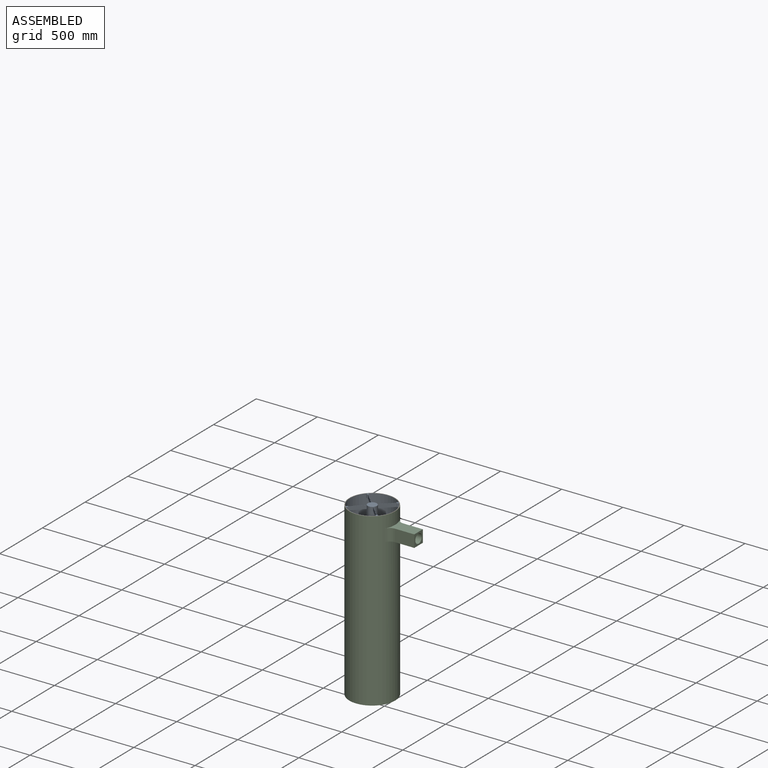
[diagram: assembled view]
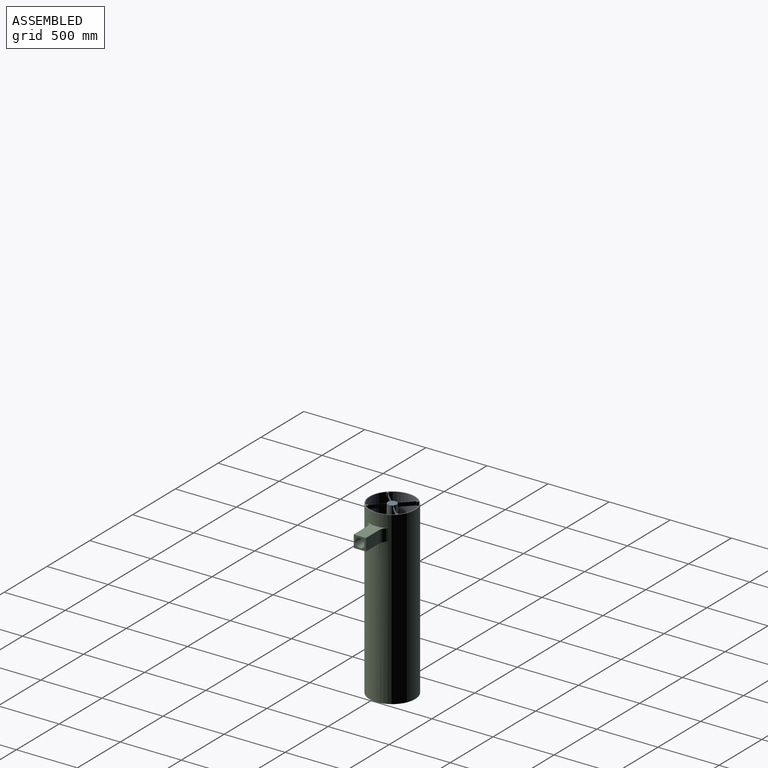
[diagram: assembled view, second angle]
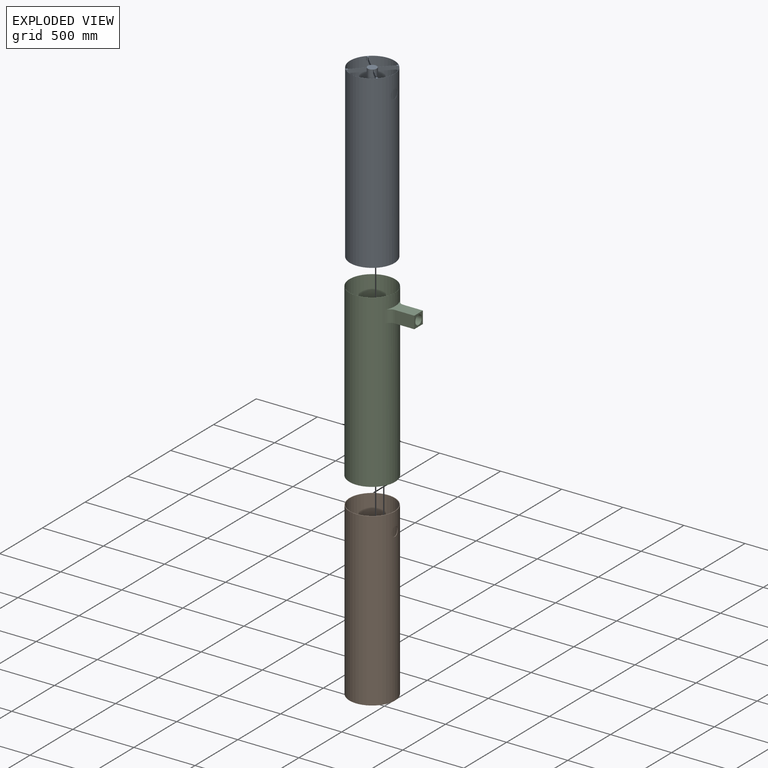
[diagram: exploded view]
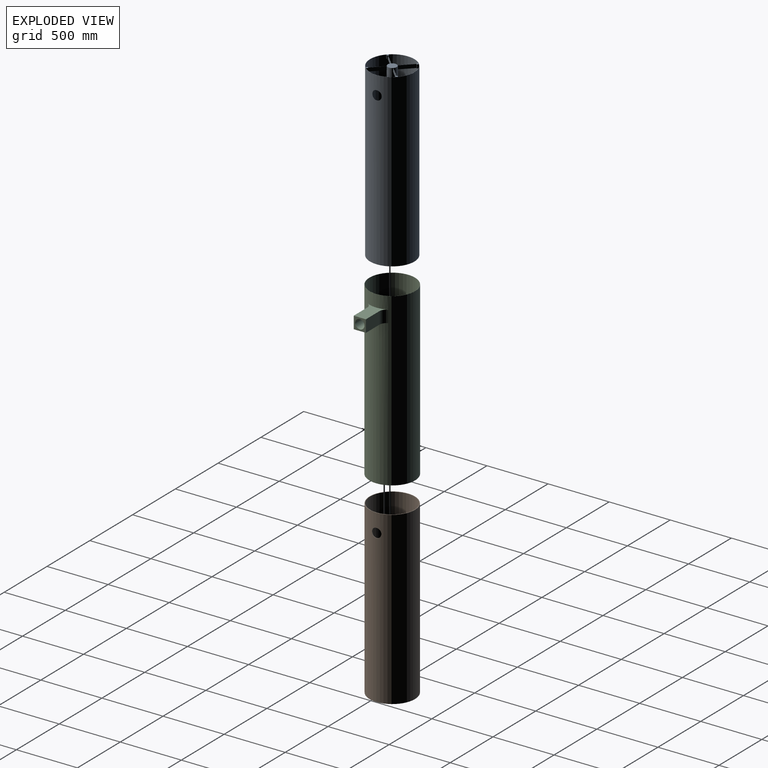
[diagram: exploded view, second angle]
ASSEMBLY  parts=3 mates=2
PART A: 35 faces, bbox 364x364x1400 mm
  f0: plane 30x11.16mm, normal (-0.71,0.71,0), area 473.5mm2, adj f2,f13,f14,f30
  f1: plane 30x11.16mm, normal (0.71,-0.71,0), area 473.5mm2, adj f2,f13,f15,f30
  f2: plane 107.36x107.36mm, normal (0,0,-1), area 382mm2, adj f0,f1,f12,f14,f15,f16,f17,f30
  f3: plane 30x11.16mm, normal (-0.71,-0.71,0), area 473.5mm2, adj f5,f13,f18,f30
  f4: plane 30x11.16mm, normal (0.71,0.71,0), area 473.5mm2, adj f5,f13,f19,f30
  f5: plane 107.36x107.36mm, normal (0,0,-1), area 382mm2, adj f3,f4,f12,f18,f19,f20,f21,f30
  f6: plane 30x11.16mm, normal (0.71,-0.71,0), area 473.5mm2, adj f8,f13,f22,f30
  f7: plane 30x11.16mm, normal (-0.71,0.71,0), area 473.5mm2, adj f8,f13,f23,f30
  f8: plane 107.36x107.36mm, normal (0,0,-1), area 382mm2, adj f6,f7,f12,f22,f23,f24,f25,f30
  f9: plane 107.36x107.36mm, normal (0,0,-1), area 382mm2, adj f10,f11,f12,f26,f27,f28,f29,f30
  f10: plane 30x11.16mm, normal (-0.71,-0.71,0), area 473.5mm2, adj f9,f13,f27,f30
  f11: plane 30x11.16mm, normal (0.71,0.71,0), area 473.5mm2, adj f9,f13,f28,f30
  f12: cylinder r=37.5mm len=179.45mm, axis (0,0,1), area 35222.8mm2, adj f2,f5,f8,f9,f13,f16,f17,f20
  f13: plane 364x364mm, normal (0,0,1), area 7086.2mm2, adj f0,f1,f3,f4,f6,f7,f10,f11
  f14: plane 30x5.3mm, normal (-0.71,-0.71,0), area 225mm2, adj f0,f2,f13,f16
  f15: plane 30x5.3mm, normal (-0.71,-0.71,0), area 225mm2, adj f1,f2,f13,f17
  f16: plane 90.19x90.19mm, normal (-0.71,0.71,0), area 3826.2mm2, adj f2,f12,f13,f14
  f17: plane 90.19x90.19mm, normal (0.71,-0.71,0), area 3826.2mm2, adj f2,f12,f13,f15
  f18: plane 30x5.3mm, normal (0.71,-0.71,0), area 225mm2, adj f3,f5,f13,f20
  f19: plane 30x5.3mm, normal (0.71,-0.71,0), area 225mm2, adj f4,f5,f13,f21
  f20: plane 90.19x90.19mm, normal (-0.71,-0.71,0), area 3826.2mm2, adj f5,f12,f13,f18
  f21: plane 90.19x90.19mm, normal (0.71,0.71,0), area 3826.2mm2, adj f5,f12,f13,f19
  f22: plane 30x5.3mm, normal (0.71,0.71,0), area 225mm2, adj f6,f8,f13,f25
  f23: plane 30x5.3mm, normal (0.71,0.71,0), area 225mm2, adj f7,f8,f13,f24
  f24: plane 90.19x90.19mm, normal (-0.71,0.71,0), area 3826.2mm2, adj f8,f12,f13,f23
  f25: plane 90.19x90.19mm, normal (0.71,-0.71,0), area 3826.2mm2, adj f8,f12,f13,f22
  f26: plane 90.19x90.19mm, normal (-0.71,-0.71,0), area 3826.2mm2, adj f9,f12,f13,f27
  f27: plane 30x5.3mm, normal (-0.71,0.71,0), area 225mm2, adj f9,f10,f13,f26
  f28: plane 30x5.3mm, normal (-0.71,0.71,0), area 225mm2, adj f9,f11,f13,f29
  f29: plane 90.19x90.19mm, normal (0.71,0.71,0), area 3826.2mm2, adj f9,f12,f13,f28
  f30: cylinder r=181mm len=1400mm, axis (0,0,1), area 1585656.9mm2, adj f0,f1,f2,f3,f4,f5,f6,f7
  f31: cylinder r=182mm len=1400mm, axis (0,0,1), area 1596374.4mm2, adj f13,f32,f33
  f32: plane 364x364mm, normal (0,0,-1), area 1140.4mm2, adj f30,f31
  f33: cylinder r=38.1mm len=76.2mm, axis (1,0,0), area 242.1mm2, adj f30,f31
  f34: plane 75x75mm, normal (0.61,0,-0.79), area 5588.3mm2, adj f12
PART B: 5 faces, bbox 372x372x1400 mm
  f0: cylinder r=186mm len=1400mm, axis (0,0,1), area 1631561.9mm2, adj f2,f3,f4
  f1: cylinder r=182mm len=1400mm, axis (0,0,1), area 1596374.4mm2, adj f2,f3,f4
  f2: plane 372x372mm, normal (0,0,-1), area 4624.4mm2, adj f0,f1
  f3: plane 372x372mm, normal (0,0,1), area 4624.4mm2, adj f0,f1
  f4: cylinder r=38.1mm len=76.2mm, axis (1,0,0), area 968.1mm2, adj f0,f1
PART C: 12 faces, bbox 566.2x374x1400 mm
  f0: plane 158x100mm, normal (0,1,0), area 15800mm2, adj f3,f5,f6,f9
  f1: cylinder r=187mm len=1400mm, axis (0,0,1), area 1627675.6mm2, adj f5,f6,f7,f8,f9,f10
  f2: plane 158x100mm, normal (0,-1,0), area 15800mm2, adj f3,f5,f6,f8
  f3: plane 100x100mm, normal (1,0,0), area 5439.6mm2, adj f0,f2,f5,f6,f11
  f4: cylinder r=186mm len=1400mm, axis (0,0,1), area 1631561.9mm2, adj f7,f10,f11
  f5: plane 211.72x166.56mm, normal (0,0,-1), area 19993.4mm2, adj f0,f1,f2,f3,f8,f9
  f6: plane 211.72x166.56mm, normal (0,0,1), area 19993.4mm2, adj f0,f1,f2,f3,f8,f9
  f7: plane 374x374mm, normal (0,0,-1), area 1171.8mm2, adj f1,f4
  f8: cylinder r=60mm len=100mm, axis (0,0,1), area 6655.4mm2, adj f1,f2,f5,f6
  f9: cylinder r=60mm len=100mm, axis (0,0,1), area 6655.4mm2, adj f0,f1,f5,f6
  f10: plane 374x374mm, normal (0,0,1), area 1171.8mm2, adj f1,f4
  f11: cylinder r=38.1mm len=197.1mm, axis (1,0,0), area 46709.8mm2, adj f3,f4
PLACE A t=(-149.61,-428.8,3.17)mm
PLACE B t=(-149.61,-428.8,3.17)mm
PLACE C t=(-149.61,-428.8,3.17)mm
MATE fastened B.f1 <-> A.f31  axis (0,0,1) through (-149.61,-428.8,103.17)mm
MATE fastened C.f4 <-> B.f0  axis (0,0,1) through (-149.61,-428.8,103.17)mm
